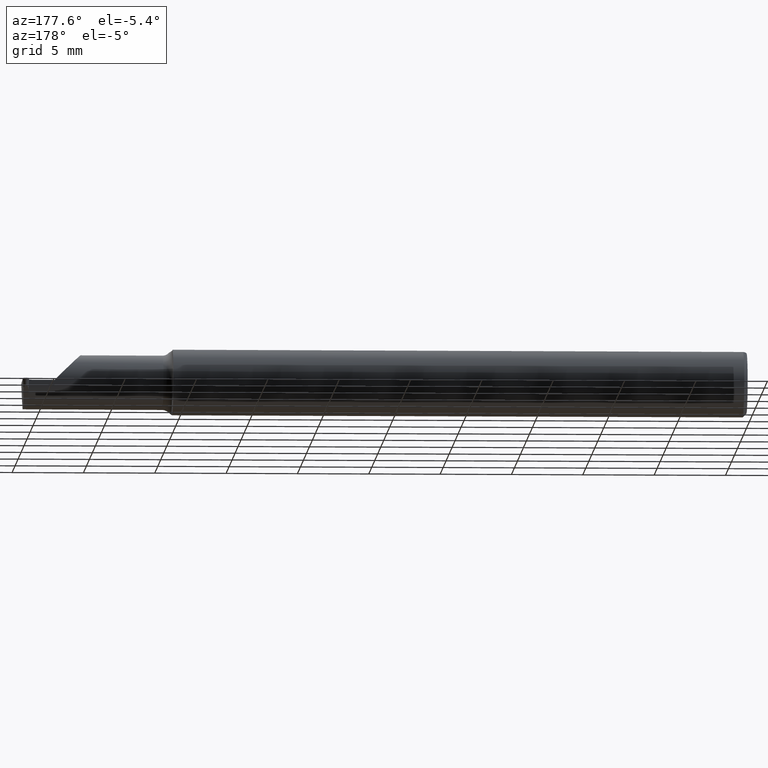
[diagram: clean part render]
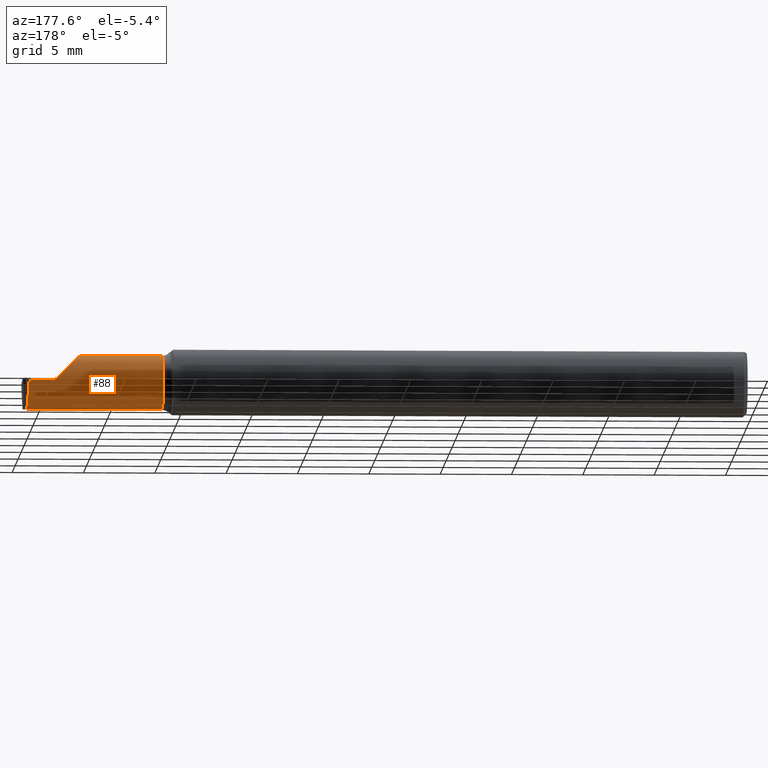
[diagram: same view with one face highlighted and labeled with its STEP entity id]
A machine part, auxiliary view. The second image highlights one B-rep face of the part: STEP entity #88.
In plain terms, the highlighted cylindrical surface (edge-blend (fillet) strip) has radius 1.905 mm, axis along (-1, -0, -0).
Its self-contained STEP definition (entity closure, byte-faithful):
#6 = CARTESIAN_POINT ( 'NONE',  ( 1.910000000000000142, 0.03239999999999999131, 5.082284216461538453E-17 ) ) ;
#13 = ORIENTED_EDGE ( 'NONE', *, *, #737, .F. ) ;
#14 = DIRECTION ( 'NONE',  ( -1.000000000000000000, -0.000000000000000000, -0.000000000000000000 ) ) ;
#23 = CARTESIAN_POINT ( 'NONE',  ( 1.977327383411515482, 0.03239999999999999825, 0.000000000000000000 ) ) ;
#35 = EDGE_CURVE ( 'NONE', #718, #169, #466, .T. ) ;
#41 = DIRECTION ( 'NONE',  ( -1.000000000000000000, -0.000000000000000000, -0.000000000000000000 ) ) ;
#49 = ORIENTED_EDGE ( 'NONE', *, *, #274, .F. ) ;
#52 = CARTESIAN_POINT ( 'NONE',  ( 1.609999999999999654, -0.04260000000000003367, 0.000000000000000000 ) ) ;
#57 = CARTESIAN_POINT ( 'NONE',  ( 1.834999999999999298, 0.001333982822017845335, 0.07500000000000003886 ) ) ;
#61 = AXIS2_PLACEMENT_3D ( 'NONE', #52, #41, #308 ) ;
#63 =( BOUNDED_CURVE ( )  B_SPLINE_CURVE ( 3, ( #378, #57, #315, #384 ),
 .UNSPECIFIED., .F., .F. ) 
 B_SPLINE_CURVE_WITH_KNOTS ( ( 4, 4 ),
 ( 0.000000000000000000, 1.570796326794896336 ),
 .UNSPECIFIED. ) 
 CURVE ( )  GEOMETRIC_REPRESENTATION_ITEM ( )  RATIONAL_B_SPLINE_CURVE ( ( 1.000000000000000000, 0.8047378541243650485, 0.8047378541243650485, 1.000000000000000000 ) ) 
 REPRESENTATION_ITEM ( '' )  );
#85 = AXIS2_PLACEMENT_3D ( 'NONE', #309, #178, #732 ) ;
#88 = ADVANCED_FACE ( 'NONE', ( #478 ), #168, .T. ) ;
#97 = CARTESIAN_POINT ( 'NONE',  ( 1.985000026482436342, 0.02931965133412152771, -0.04667009593691543584 ) ) ;
#105 = ORIENTED_EDGE ( 'NONE', *, *, #220, .T. ) ;
#108 = CARTESIAN_POINT ( 'NONE',  ( 1.986043175114837744, -0.001060451341131608870, -0.07500000000000005274 ) ) ;
#113 = CARTESIAN_POINT ( 'NONE',  ( 1.986094660071884288, -0.04260000000000003367, -0.07500000000000002498 ) ) ;
#133 = ORIENTED_EDGE ( 'NONE', *, *, #679, .T. ) ;
#138 = CARTESIAN_POINT ( 'NONE',  ( 1.584999999999999964, -0.04260000000000002673, -0.07500000000000003886 ) ) ;
#154 = CARTESIAN_POINT ( 'NONE',  ( 1.584999999999999964, 0.03221730376948682417, -0.005231735530809322222 ) ) ;
#157 = CARTESIAN_POINT ( 'NONE',  ( 1.977266484668011248, 0.03233910125649559764, -0.001743911843603133211 ) ) ;
#168 = CYLINDRICAL_SURFACE ( 'NONE', #85, 0.07500000000000003886 ) ;
#169 = VERTEX_POINT ( 'NONE', #629 ) ;
#170 = CARTESIAN_POINT ( 'NONE',  ( 1.977205585924506570, 0.03227820251299121090, -0.003487823687206267290 ) ) ;
#178 = DIRECTION ( 'NONE',  ( -1.000000000000000000, -0.000000000000000000, -0.000000000000000000 ) ) ;
#179 = VERTEX_POINT ( 'NONE', #750 ) ;
#190 = EDGE_CURVE ( 'NONE', #651, #774, #443, .T. ) ;
#208 = VECTOR ( 'NONE', #515, 39.37007874015748143 ) ;
#220 = EDGE_CURVE ( 'NONE', #179, #651, #63, .T. ) ;
#254 = VERTEX_POINT ( 'NONE', #578 ) ;
#256 = LINE ( 'NONE', #505, #674 ) ;
#260 = ORIENTED_EDGE ( 'NONE', *, *, #35, .F. ) ;
#267 =( BOUNDED_CURVE ( )  B_SPLINE_CURVE ( 3, ( #113, #108, #97, #612 ),
 .UNSPECIFIED., .F., .F. ) 
 B_SPLINE_CURVE_WITH_KNOTS ( ( 4, 4 ),
 ( 3.176499238629679756, 4.677482395344800814 ),
 .UNSPECIFIED. ) 
 CURVE ( )  GEOMETRIC_REPRESENTATION_ITEM ( )  RATIONAL_B_SPLINE_CURVE ( ( 1.000000000000000000, 0.8209024677461141950, 0.8209024677461141950, 1.000000000000000000 ) ) 
 REPRESENTATION_ITEM ( '' )  );
#274 = EDGE_CURVE ( 'NONE', #179, #254, #256, .T. ) ;
#292 = VECTOR ( 'NONE', #14, 39.37007874015748143 ) ;
#308 = DIRECTION ( 'NONE',  ( 0.000000000000000000, 0.000000000000000000, 1.000000000000000000 ) ) ;
#309 = CARTESIAN_POINT ( 'NONE',  ( 1.584999999999999964, -0.04260000000000003367, 0.000000000000000000 ) ) ;
#311 = ORIENTED_EDGE ( 'NONE', *, *, #581, .F. ) ;
#315 = CARTESIAN_POINT ( 'NONE',  ( 1.866066017177981706, 0.03239999999999999131, 0.04393398282201791544 ) ) ;
#323 = CARTESIAN_POINT ( 'NONE',  ( 1.584999999999999964, 0.03239999999999999131, 5.082284216461538453E-17 ) ) ;
#344 = CARTESIAN_POINT ( 'NONE',  ( 1.986094660071884288, -0.04260000000000003367, -0.07500000000000002498 ) ) ;
#378 = CARTESIAN_POINT ( 'NONE',  ( 1.834999999999999520, -0.04260000000000003367, 0.07500000000000003886 ) ) ;
#383 = VERTEX_POINT ( 'NONE', #344 ) ;
#384 = CARTESIAN_POINT ( 'NONE',  ( 1.910000000000000142, 0.03239999999999999131, 5.082284216461538453E-17 ) ) ;
#408 = DIRECTION ( 'NONE',  ( -1.000000000000000000, -0.000000000000000000, -0.000000000000000000 ) ) ;
#436 = ORIENTED_EDGE ( 'NONE', *, *, #488, .F. ) ;
#443 = LINE ( 'NONE', #323, #208 ) ;
#454 = DIRECTION ( 'NONE',  ( -1.000000000000000000, -0.000000000000000000, -0.000000000000000000 ) ) ;
#466 = LINE ( 'NONE', #154, #752 ) ;
#478 = FACE_OUTER_BOUND ( 'NONE', #729, .T. ) ;
#479 = ORIENTED_EDGE ( 'NONE', *, *, #190, .T. ) ;
#488 = EDGE_CURVE ( 'NONE', #383, #718, #267, .T. ) ;
#505 = CARTESIAN_POINT ( 'NONE',  ( 1.584999999999999964, -0.04260000000000003367, 0.07500000000000003886 ) ) ;
#513 = CARTESIAN_POINT ( 'NONE',  ( 1.983525690212190273, 0.03221730376948681029, -0.005231735530809572890 ) ) ;
#515 = DIRECTION ( 'NONE',  ( 1.000000000000000000, 0.000000000000000000, 0.000000000000000000 ) ) ;
#529 = CARTESIAN_POINT ( 'NONE',  ( 1.977327383411515482, 0.03239999999999999825, 0.000000000000000000 ) ) ;
#537 = B_SPLINE_CURVE_WITH_KNOTS ( 'NONE', 3,
 ( #714, #170, #157, #23 ),
 .UNSPECIFIED., .F., .F.,
 ( 4, 4 ),
 ( 0.000000000000000000, 1.000000000000000000 ),
 .UNSPECIFIED. ) ;
#577 = CIRCLE ( 'NONE', #61, 0.07500000000000003886 ) ;
#578 = CARTESIAN_POINT ( 'NONE',  ( 1.609999999999999654, -0.04260000000000003367, 0.07500000000000005274 ) ) ;
#581 = EDGE_CURVE ( 'NONE', #254, #799, #577, .T. ) ;
#612 = CARTESIAN_POINT ( 'NONE',  ( 1.983525690212190273, 0.03221730376948681029, -0.005231735530809572890 ) ) ;
#629 = CARTESIAN_POINT ( 'NONE',  ( 1.977144687181002336, 0.03221730376948681029, -0.005231735530809408959 ) ) ;
#651 = VERTEX_POINT ( 'NONE', #6 ) ;
#674 = VECTOR ( 'NONE', #454, 39.37007874015748143 ) ;
#679 = EDGE_CURVE ( 'NONE', #383, #799, #767, .T. ) ;
#714 = CARTESIAN_POINT ( 'NONE',  ( 1.977144687181002336, 0.03221730376948681029, -0.005231735530809408959 ) ) ;
#718 = VERTEX_POINT ( 'NONE', #513 ) ;
#725 = CARTESIAN_POINT ( 'NONE',  ( 1.609999999999999654, -0.04260000000000002673, -0.07500000000000005274 ) ) ;
#729 = EDGE_LOOP ( 'NONE', ( #436, #133, #311, #49, #105, #479, #13, #260 ) ) ;
#732 = DIRECTION ( 'NONE',  ( 0.000000000000000000, 0.000000000000000000, 1.000000000000000000 ) ) ;
#737 = EDGE_CURVE ( 'NONE', #169, #774, #537, .T. ) ;
#750 = CARTESIAN_POINT ( 'NONE',  ( 1.834999999999999520, -0.04260000000000003367, 0.07500000000000003886 ) ) ;
#752 = VECTOR ( 'NONE', #408, 39.37007874015748143 ) ;
#767 = LINE ( 'NONE', #138, #292 ) ;
#774 = VERTEX_POINT ( 'NONE', #529 ) ;
#799 = VERTEX_POINT ( 'NONE', #725 ) ;